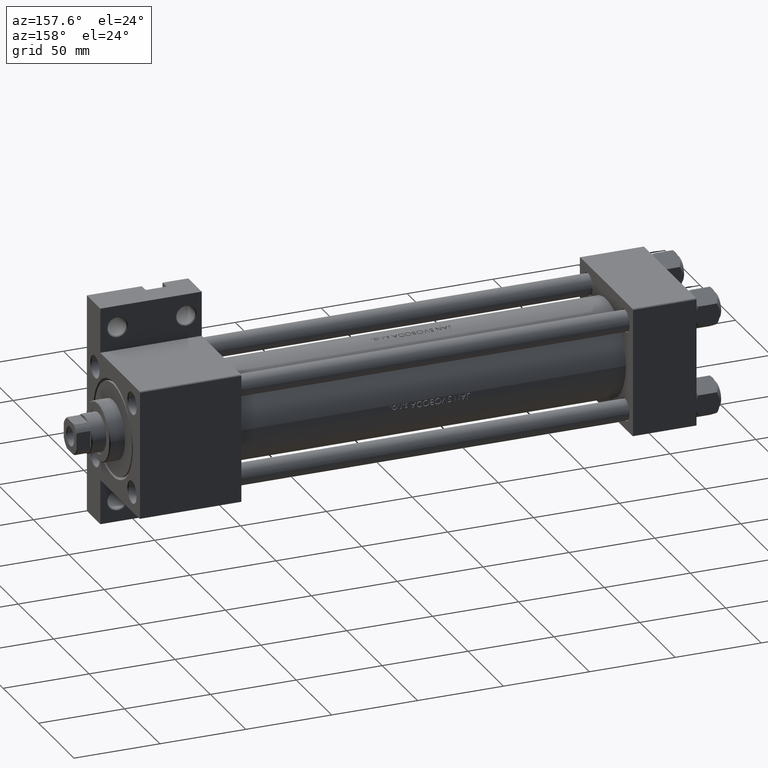
[diagram: clean part render]
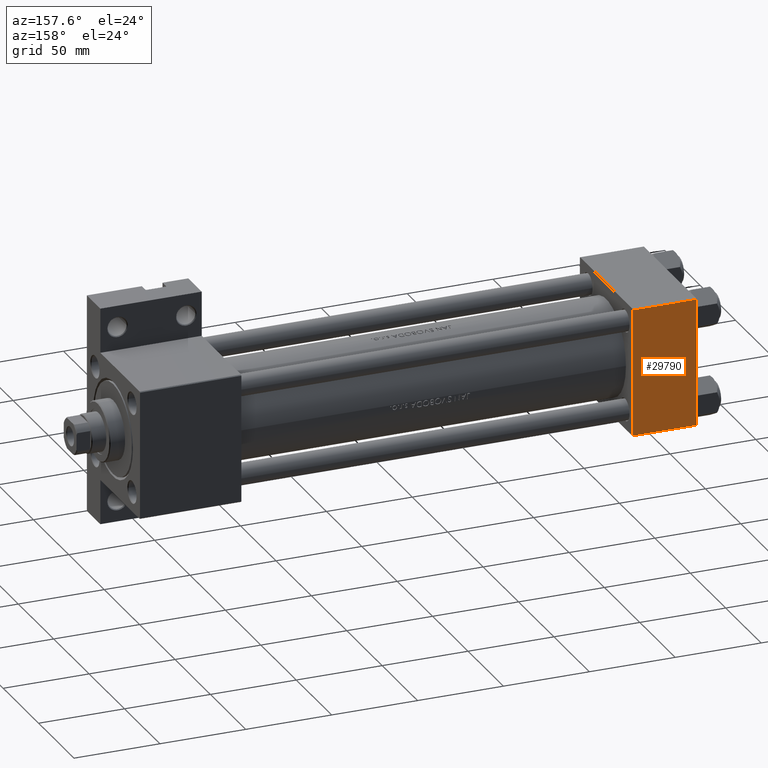
[diagram: same view with one face highlighted and labeled with its STEP entity id]
A machine part, auxiliary view. The second image highlights one B-rep face of the part: STEP entity #29790.
In plain terms, the highlighted planar face has unit normal (0, -1, -0).
Its self-contained STEP definition (entity closure, byte-faithful):
#2964 = ORIENTED_EDGE ( 'NONE', *, *, #24611, .T. ) ;
#3480 = CARTESIAN_POINT ( 'NONE',  ( 37.00000000000000000, 36.99999999999999289, 37.50000000000000000 ) ) ;
#4227 = LINE ( 'NONE', #43742, #23767 ) ;
#4230 = VERTEX_POINT ( 'NONE', #3480 ) ;
#5381 = ORIENTED_EDGE ( 'NONE', *, *, #26769, .T. ) ;
#5743 = DIRECTION ( 'NONE',  ( 0.000000000000000000, -1.000000000000000000, -9.251858538542971581E-17 ) ) ;
#8103 = VERTEX_POINT ( 'NONE', #9340 ) ;
#8561 = VERTEX_POINT ( 'NONE', #16253 ) ;
#8984 = AXIS2_PLACEMENT_3D ( 'NONE', #46439, #42810, #9817 ) ;
#9340 = CARTESIAN_POINT ( 'NONE',  ( 0.000000000000000000, -37.00000000000000711, 37.49999999999999289 ) ) ;
#9817 = DIRECTION ( 'NONE',  ( 0.000000000000000000, 1.000000000000000000, 9.251858538542971581E-17 ) ) ;
#11022 = CARTESIAN_POINT ( 'NONE',  ( 37.00000000000000000, -37.00000000000000711, 37.49999999999999289 ) ) ;
#11674 = ORIENTED_EDGE ( 'NONE', *, *, #39861, .T. ) ;
#11726 = DIRECTION ( 'NONE',  ( 1.000000000000000000, 0.000000000000000000, 0.000000000000000000 ) ) ;
#15348 = DIRECTION ( 'NONE',  ( 0.000000000000000000, -1.000000000000000000, -9.251858538542971581E-17 ) ) ;
#16253 = CARTESIAN_POINT ( 'NONE',  ( 37.00000000000000000, -37.00000000000000711, 37.49999999999999289 ) ) ;
#17032 = FACE_OUTER_BOUND ( 'NONE', #39381, .T. ) ;
#17519 = VERTEX_POINT ( 'NONE', #32419 ) ;
#23267 = CARTESIAN_POINT ( 'NONE',  ( 37.00000000000000000, 37.49999999999999289, 37.50000000000000000 ) ) ;
#23767 = VECTOR ( 'NONE', #44209, 1000.000000000000000 ) ;
#24611 = EDGE_CURVE ( 'NONE', #17519, #8103, #27127, .T. ) ;
#25922 = LINE ( 'NONE', #11022, #27308 ) ;
#26769 = EDGE_CURVE ( 'NONE', #8103, #8561, #25922, .T. ) ;
#27115 = LINE ( 'NONE', #23267, #32880 ) ;
#27127 = LINE ( 'NONE', #30983, #47274 ) ;
#27308 = VECTOR ( 'NONE', #11726, 1000.000000000000000 ) ;
#29790 = ADVANCED_FACE ( 'NONE', ( #17032 ), #31701, .F. ) ;
#30983 = CARTESIAN_POINT ( 'NONE',  ( 0.000000000000000000, 37.49999999999999289, 37.50000000000000000 ) ) ;
#31701 = PLANE ( 'NONE',  #8984 ) ;
#32419 = CARTESIAN_POINT ( 'NONE',  ( 0.000000000000000000, 36.99999999999999289, 37.50000000000000000 ) ) ;
#32880 = VECTOR ( 'NONE', #15348, 1000.000000000000000 ) ;
#36453 = EDGE_CURVE ( 'NONE', #4230, #8561, #27115, .T. ) ;
#39381 = EDGE_LOOP ( 'NONE', ( #2964, #5381, #45739, #11674 ) ) ;
#39861 = EDGE_CURVE ( 'NONE', #4230, #17519, #4227, .T. ) ;
#42810 = DIRECTION ( 'NONE',  ( 0.000000000000000000, 9.251858538542971581E-17, -1.000000000000000000 ) ) ;
#43742 = CARTESIAN_POINT ( 'NONE',  ( 0.000000000000000000, 36.99999999999999289, 37.50000000000000000 ) ) ;
#44209 = DIRECTION ( 'NONE',  ( -1.000000000000000000, 0.000000000000000000, 0.000000000000000000 ) ) ;
#45739 = ORIENTED_EDGE ( 'NONE', *, *, #36453, .F. ) ;
#46439 = CARTESIAN_POINT ( 'NONE',  ( 37.00000000000000000, 37.49999999999999289, 37.50000000000000000 ) ) ;
#47274 = VECTOR ( 'NONE', #5743, 1000.000000000000000 ) ;